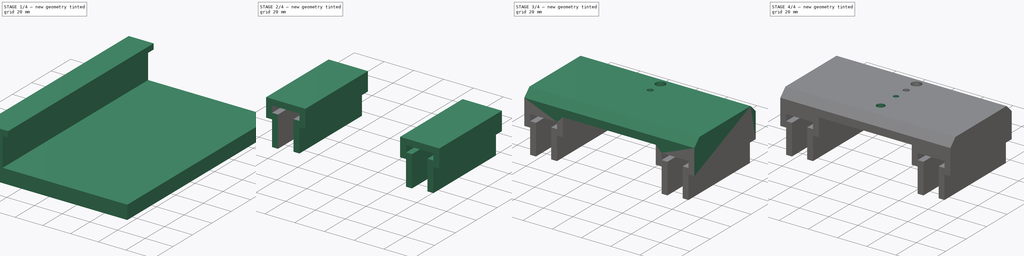
[diagram: build sequence overview — one tinted view per stage of 4, left to right]
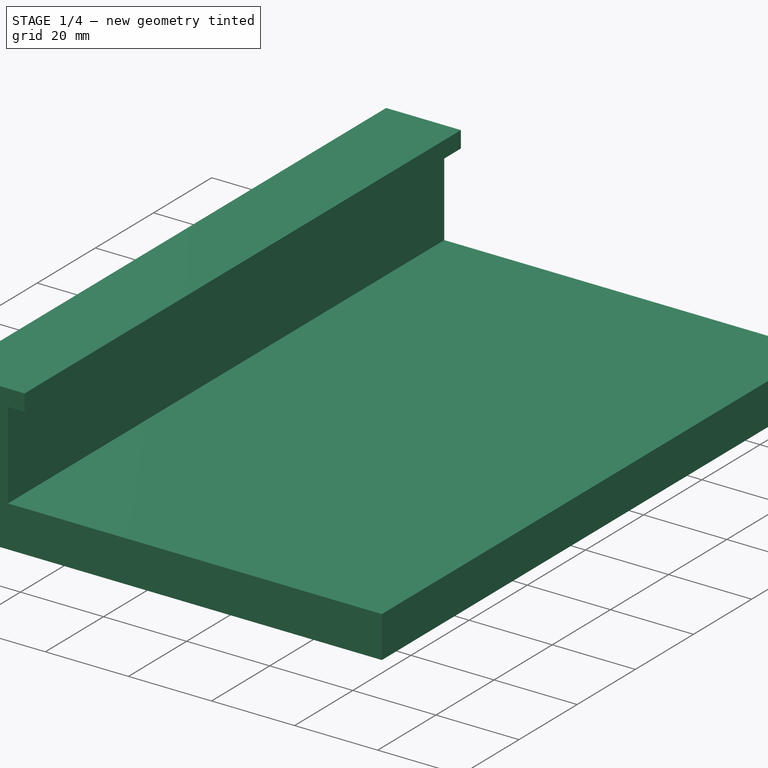
[diagram: stage 1 of 4 — iso view after this stage's code; geometry added in this stage tinted green]
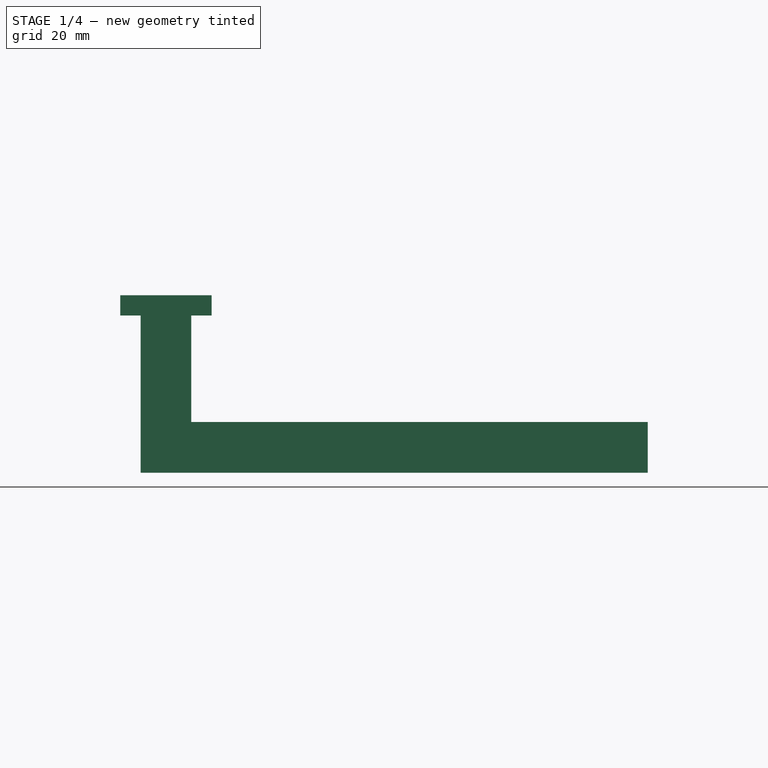
[diagram: stage 1 of 4 — front view after this stage's code; geometry added in this stage tinted green]
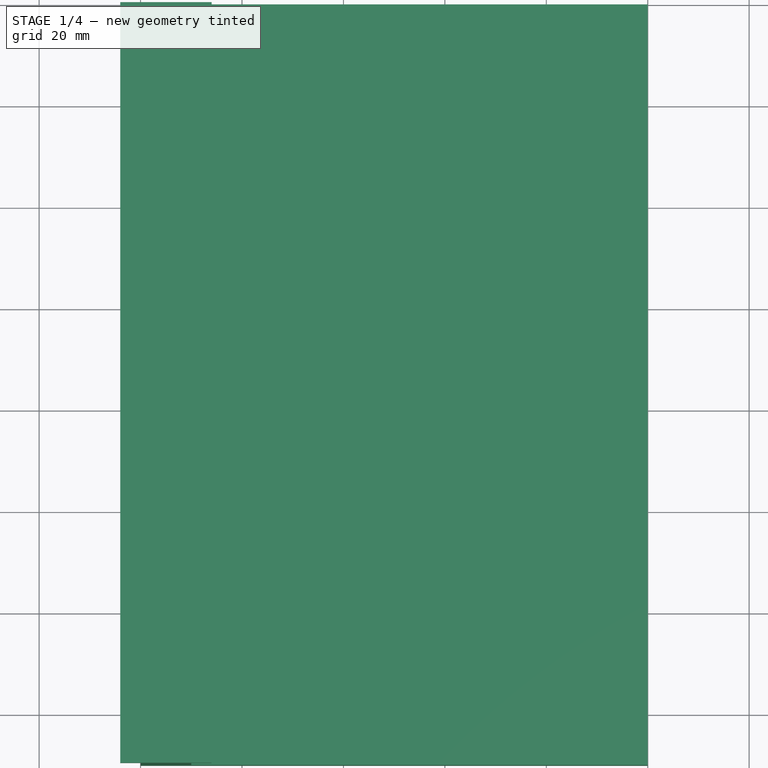
[diagram: stage 1 of 4 — top view after this stage's code; geometry added in this stage tinted green]
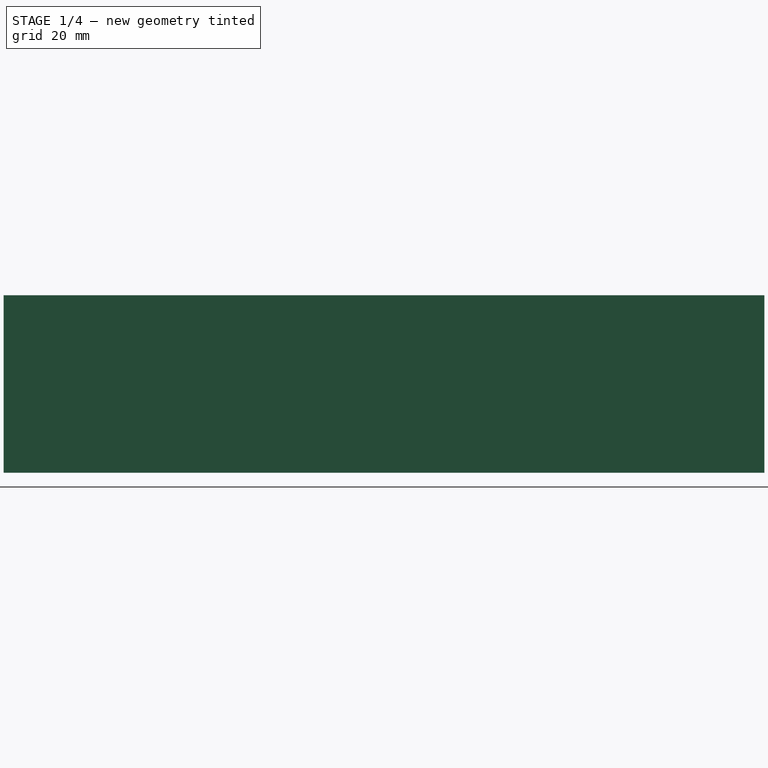
[diagram: stage 1 of 4 — right view after this stage's code; geometry added in this stage tinted green]
FCSTD DOCUMENT  (FreeCAD 1.0R39319 (Git))
Label: Pipe borer
License: All rights reserved
LicenseURL: https://en.wikipedia.org/wiki/All_rights_reserved
objects: Sketcher::SketchObject×5, PartDesign::Pad×4, PartDesign::Hole×4, App::VarSet×2, PartDesign::LinearPattern×2, PartDesign::Body×2, App::Part×2, PartDesign::ShapeBinder×2
note: 42 computed .brp shape members not serialized (recipe doc carries the construction recipe); baked Part::Feature solids carry a one-line shape summary decoded from their .brp

FEATURE [App::VarSet] VarSet
  Base_gap_for_sliding_parts = 0.2
  Y_rail_heigth = 10
  Y_rail_width = 60
  base_heigth = 10
  base_length = 150
  base_rail_heigth = 25
  base_rail_width = 10
  base_width = 100
  gap_for_sliding_coeff = 0.4
  trim_depth = 5
FEATURE [Sketcher::SketchObject] Sketch
  ArcFitTolerance = 1e-06
  AttachmentSupport = -> [XY_Plane001]
  FullyConstrained = false
  MakeInternals = false
  MapMode = 5
  expr: Constraints[8] = <<VarSet>>.base_length
  expr: Constraints[9] = VarSet.base_width
  sketch-geometry (4):
    g0: LineSegment StartX=0 StartY=0 StartZ=0 EndX=0 EndY=-150 EndZ=0
    g1: LineSegment StartX=0 StartY=-150 StartZ=0 EndX=100 EndY=-150 EndZ=0
    g2: LineSegment StartX=100 StartY=-150 StartZ=0 EndX=100 EndY=0 EndZ=0
    g3: LineSegment StartX=100 StartY=0 StartZ=0 EndX=0 EndY=0 EndZ=0
  constraints (10):
    c: Coincident(g0,g1)
    c: Coincident(g1,g2)
    c: Coincident(g2,g3)
    c: Coincident(g3,g0)
    c: Vertical(g0)
    c: Vertical(g2)
    c: Horizontal(g1)
    c: Horizontal(g3)
    c: DistanceY(g0,g0) = 150
    c: DistanceX(g3,g3) = 100
FEATURE [PartDesign::Pad] Pad
  Direction = (0,0,1)
  Length = 10
  Length2 = 10
  Profile = -> Sketch
  ReferenceAxis = -> Sketch [N_Axis]
  Refine = true
  Suppressed = false
  Type = 0
  expr: Length = VarSet.base_heigth
FEATURE [Sketcher::SketchObject] Sketch001
  ArcFitTolerance = 1e-06
  AttachmentSupport = -> [Pad]
  ExternalGeometry = -> [Pad]
  FullyConstrained = true
  MakeInternals = false
  MapMode = 5
  Placement = pos=(0,-150,0) rot=(1,0,0;1.5708rad)
  expr: Constraints[18] = VarSet.base_rail_heigth
  expr: Constraints[19] = VarSet.base_rail_width
  expr: Constraints[20] = VarSet.base_rail_width * VarSet.gap_for_sliding_coeff
  expr: Constraints[22] = VarSet.base_rail_width * VarSet.gap_for_sliding_coeff
  expr: Constraints[23] = VarSet.base_rail_width * VarSet.gap_for_sliding_coeff
  expr: Constraints[24] = VarSet.base_rail_width * VarSet.gap_for_sliding_coeff
  expr: Constraints[25] = VarSet.base_rail_width * VarSet.gap_for_sliding_coeff
  sketch-geometry (8):
    g0: LineSegment StartX=0 StartY=10 StartZ=0 EndX=0 EndY=31 EndZ=0
    g1: LineSegment StartX=0 StartY=31 StartZ=0 EndX=-4 EndY=31 EndZ=0
    g2: LineSegment StartX=-4 StartY=31 StartZ=0 EndX=-4 EndY=35 EndZ=0
    g3: LineSegment StartX=-4 StartY=35 StartZ=0 EndX=14 EndY=35 EndZ=0
    g4: LineSegment StartX=14 StartY=35 StartZ=0 EndX=14 EndY=31 EndZ=0
    g5: LineSegment StartX=14 StartY=31 StartZ=0 EndX=10 EndY=31 EndZ=0
    g6: LineSegment StartX=10 StartY=31 StartZ=0 EndX=10 EndY=10 EndZ=0
    g7: LineSegment StartX=10 StartY=10 StartZ=0 EndX=0 EndY=10 EndZ=0
  constraints (26):
    c: PointOnObject(g0,g-2)
    c: PointOnObject(g0,g-2)
    c: Vertical(g0)
    c: Coincident(g0,g1)
    c: Horizontal(g1)
    c: Coincident(g1,g2)
    c: Vertical(g2)
    c: Coincident(g2,g3)
    c: Horizontal(g3)
    c: Coincident(g3,g4)
    c: Vertical(g4)
    c: Coincident(g4,g5)
    c: Horizontal(g5)
    c: Coincident(g5,g6)
    c: Vertical(g6)
    c: Coincident(g6,g7)
    c: Coincident(g7,g0)
    c: Horizontal(g7)
    c: DistanceY(g0,g2) = 25
    c: DistanceX(g0,g6) = 10
    c: DistanceX(g2,g1) = 4
    c: Coincident(g0,g-3)
    c: DistanceX(g5,g4) = 4
    c: DistanceX(g1,g0) = 4
    c: DistanceY(g1,g2) = 4
    c: DistanceY(g4,g3) = 4
FEATURE [PartDesign::Pad] Pad001
  BaseFeature = -> Pad
  Direction = (0,-1,2e-16)
  Length = 150
  Length2 = 10
  Profile = -> Sketch001
  ReferenceAxis = -> Sketch001 [N_Axis]
  Refine = true
  Reversed = true
  Suppressed = false
  Type = 3
  UpToFace = -> Pad [Face4]
  expr: Length = <<VarSet>>.base_length
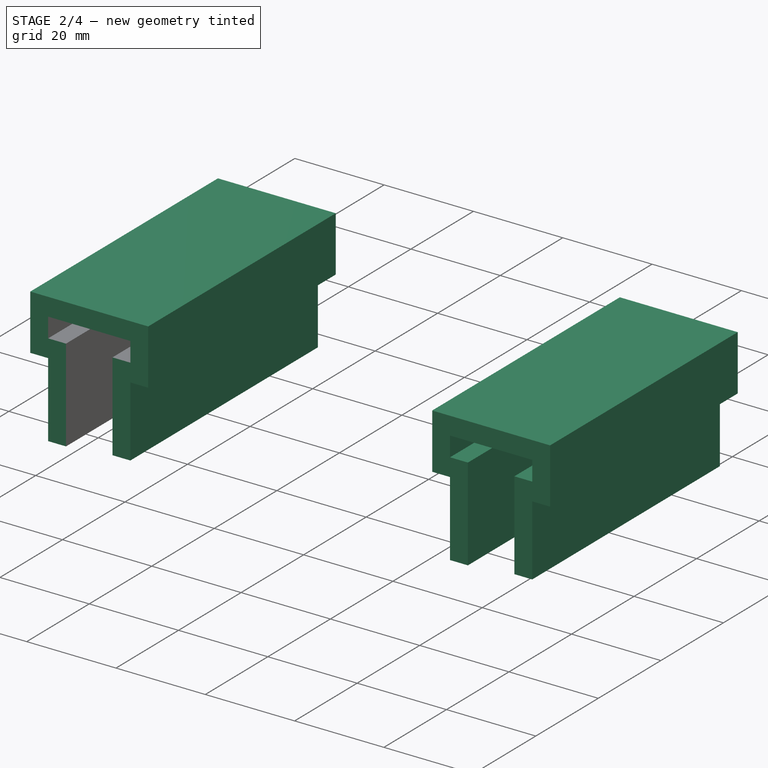
[diagram: stage 2 of 4 — iso view after this stage's code; geometry added in this stage tinted green]
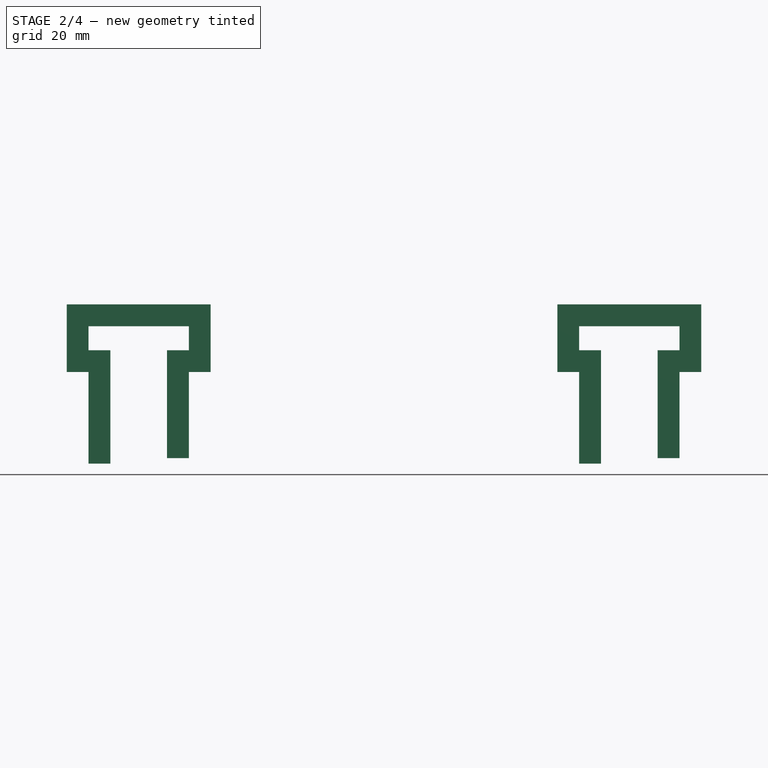
[diagram: stage 2 of 4 — front view after this stage's code; geometry added in this stage tinted green]
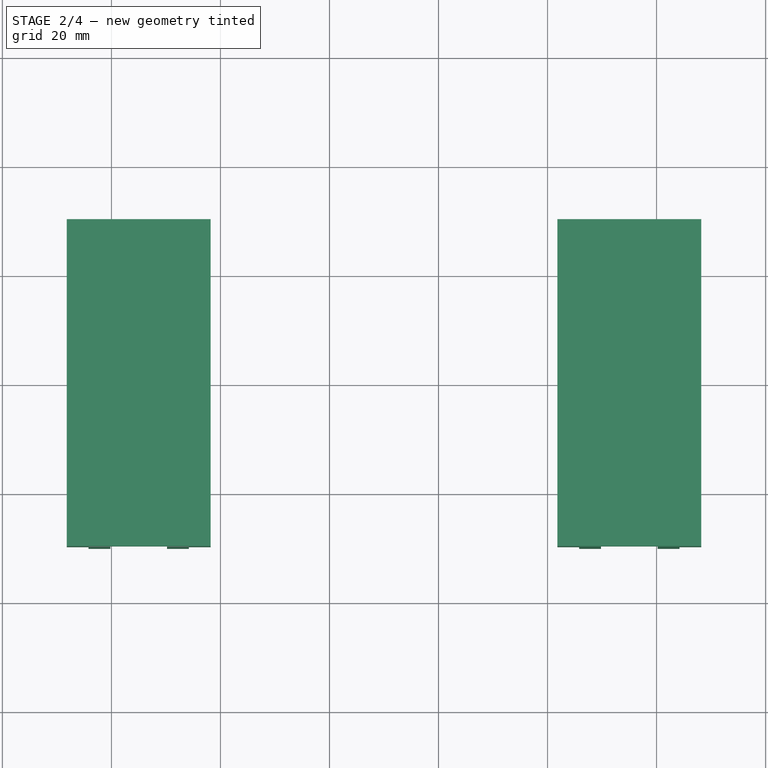
[diagram: stage 2 of 4 — top view after this stage's code; geometry added in this stage tinted green]
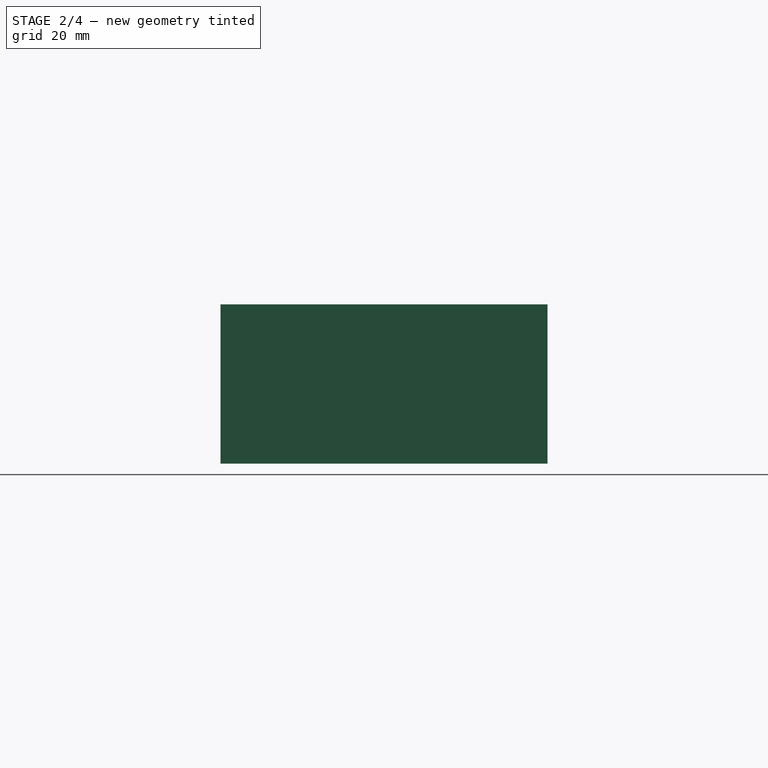
[diagram: stage 2 of 4 — right view after this stage's code; geometry added in this stage tinted green]
FEATURE [PartDesign::LinearPattern] LinearPattern
  BaseFeature = -> Pad001
  Direction = -> Sketch001 [H_Axis]
  Length = 90
  Mode = 0
  Occurrences = 2
  Offset = 90
  Originals = -> [Pad001]
  Refine = true
  Suppressed = false
  TransformMode = 0
  expr: Length = <<VarSet>>.base_width - <<VarSet>>.base_rail_width
FEATURE [PartDesign::Body] Body  label="main"
  AllowCompound = false
  Group = -> [Sketch,Pad,Sketch001,Pad001,LinearPattern]
  Origin = -> Origin001
  Tip = -> LinearPattern
FEATURE [App::Part] Part  label="Base"
  Group = -> [Body]
  Origin = -> Origin
FEATURE [PartDesign::ShapeBinder] ShapeBinder
  Support = -> [LinearPattern]
  TraceSupport = true
FEATURE [Sketcher::SketchObject] Sketch002
  ArcFitTolerance = 1e-06
  AttachmentSupport = -> [ShapeBinder]
  ExternalGeometry = -> [ShapeBinder]
  FullyConstrained = false
  MakeInternals = false
  MapMode = 5
  Placement = pos=(0,-150,0) rot=(1,0,0;1.5708rad)
  expr: Constraints[32] = <<VarSet>>.Base_gap_for_sliding_parts
  expr: Constraints[33] = <<VarSet>>.Base_gap_for_sliding_parts
  expr: Constraints[34] = <<VarSet>>.Base_gap_for_sliding_parts
  expr: Constraints[35] = VarSet.Base_gap_for_sliding_parts
  expr: Constraints[36] = VarSet.Base_gap_for_sliding_parts
  expr: Constraints[37] = VarSet.Base_gap_for_sliding_parts
  expr: Constraints[38] = VarSet.Base_gap_for_sliding_parts
  expr: Constraints[39] = VarSet.base_rail_width * VarSet.gap_for_sliding_coeff
  expr: Constraints[40] = VarSet.base_rail_width * VarSet.gap_for_sliding_coeff
  expr: Constraints[41] = VarSet.base_rail_width * VarSet.gap_for_sliding_coeff
  expr: Constraints[42] = VarSet.base_rail_width * VarSet.gap_for_sliding_coeff
  expr: Constraints[43] = VarSet.base_rail_width * VarSet.gap_for_sliding_coeff
  expr: Constraints[44] = VarSet.base_rail_width * VarSet.gap_for_sliding_coeff
  expr: Constraints[45] = VarSet.base_rail_width * VarSet.gap_for_sliding_coeff
  sketch-geometry (16):
    g0: LineSegment StartX=-0.2 StartY=10 StartZ=0 EndX=-0.2 EndY=30.8 EndZ=0
    g1: LineSegment StartX=-0.2 StartY=30.8 StartZ=0 EndX=-4.2 EndY=30.8 EndZ=0
    g2: LineSegment StartX=-4.2 StartY=30.8 StartZ=0 EndX=-4.2 EndY=35.2 EndZ=0
    g3: LineSegment StartX=-4.2 StartY=35.2 StartZ=0 EndX=14.2 EndY=35.2 EndZ=0
    g4: LineSegment StartX=14.2 StartY=35.2 StartZ=0 EndX=14.2 EndY=30.8 EndZ=0
    g5: LineSegment StartX=14.2 StartY=30.8 StartZ=0 EndX=10.2 EndY=30.8 EndZ=0
    g6: LineSegment StartX=10.2 StartY=30.8 StartZ=0 EndX=10.2 EndY=11 EndZ=0
    g7: LineSegment StartX=10.2 StartY=11 StartZ=0 EndX=14.2 EndY=11 EndZ=0
    g8: LineSegment StartX=14.2 StartY=11 StartZ=0 EndX=14.2 EndY=26.8 EndZ=0
    g9: LineSegment StartX=14.2 StartY=26.8 StartZ=0 EndX=18.2 EndY=26.8 EndZ=0
    g10: LineSegment StartX=18.2 StartY=26.8 StartZ=0 EndX=18.2 EndY=39.2 EndZ=0
    g11: LineSegment StartX=18.2 StartY=39.2 StartZ=0 EndX=-8.2 EndY=39.2 EndZ=0
    g12: LineSegment StartX=-8.2 StartY=39.2 StartZ=0 EndX=-8.2 EndY=26.8 EndZ=0
    g13: LineSegment StartX=-8.2 StartY=26.8 StartZ=0 EndX=-4.2 EndY=26.8 EndZ=0
    g14: LineSegment StartX=-4.2 StartY=26.8 StartZ=0 EndX=-4.2 EndY=10 EndZ=0
    g15: LineSegment StartX=-4.2 StartY=10 StartZ=0 EndX=-0.2 EndY=10 EndZ=0
  constraints (46):
    c: Vertical(g0)
    c: Coincident(g0,g1)
    c: Horizontal(g1)
    c: Coincident(g1,g2)
    c: Vertical(g2)
    c: Coincident(g2,g3)
    c: Horizontal(g3)
    c: Coincident(g3,g4)
    c: Vertical(g4)
    c: Coincident(g4,g5)
    c: Horizontal(g5)
    c: Coincident(g5,g6)
    c: Vertical(g6)
    c: Coincident(g6,g7)
    c: Horizontal(g7)
    c: Coincident(g7,g8)
    c: Vertical(g8)
    c: Coincident(g8,g9)
    c: Horizontal(g9)
    c: Coincident(g9,g10)
    c: Vertical(g10)
    c: Coincident(g10,g11)
    c: Horizontal(g11)
    c: Coincident(g11,g12)
    c: Vertical(g12)
    c: Coincident(g12,g13)
    c: Horizontal(g13)
    c: Coincident(g13,g14)
    c: Vertical(g14)
    c: Coincident(g14,g15)
    c: Coincident(g15,g0)
    c: Horizontal(g15)
    c: DistanceX(g2,g-5) = 0.2
    c: DistanceX(g-10,g3) = 0.2
    c: DistanceX(g-9,g5) = 0.2
    c: DistanceY(g4,g-10) = 0.2
    c: DistanceY(g0,g-7) = 0.2
    c: DistanceX(g0,g-7) = 0.2
    c: DistanceY(g-5,g2) = 0.2
    c: DistanceX(g14,g0) = 4
    c: DistanceY(g13,g1) = 4
    c: DistanceX(g6,g7) = 4
    c: DistanceY(g8,g4) = 4
    c: DistanceY(g3,g10) = 4
    c: DistanceX(g4,g9) = 4
    c: DistanceX(g12,g1) = 4
FEATURE [PartDesign::Pad] Pad002
  Direction = (0,-1,2e-16)
  Length = 60
  Length2 = 10
  Profile = -> Sketch002
  ReferenceAxis = -> Sketch002 [N_Axis]
  Refine = true
  Reversed = true
  Suppressed = false
  Type = 0
  expr: Length = VarSet.Y_rail_width
FEATURE [PartDesign::LinearPattern] LinearPattern001
  BaseFeature = -> Pad002
  Direction = -> Sketch002 [H_Axis]
  Length = 90
  Mode = 0
  Occurrences = 2
  Offset = 90
  Originals = -> [Pad002]
  Refine = true
  Suppressed = false
  TransformMode = 1
  expr: Length = <<VarSet>>.base_width - <<VarSet>>.base_rail_width
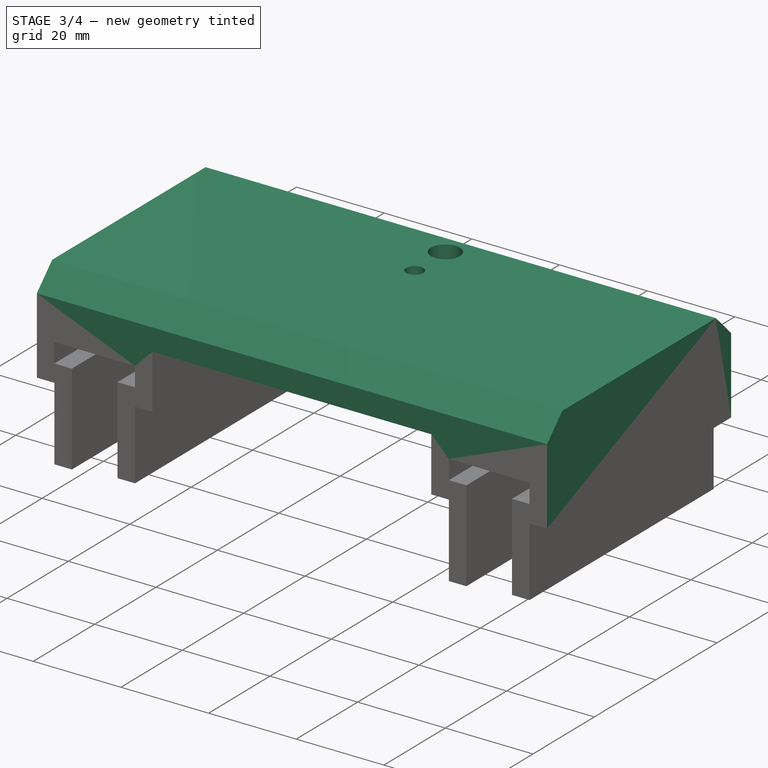
[diagram: stage 3 of 4 — iso view after this stage's code; geometry added in this stage tinted green]
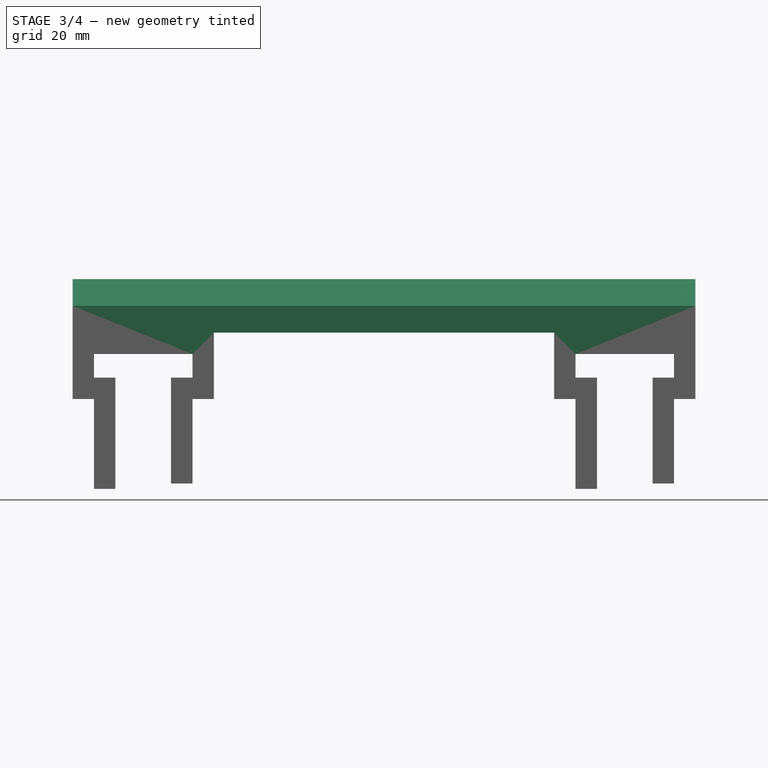
[diagram: stage 3 of 4 — front view after this stage's code; geometry added in this stage tinted green]
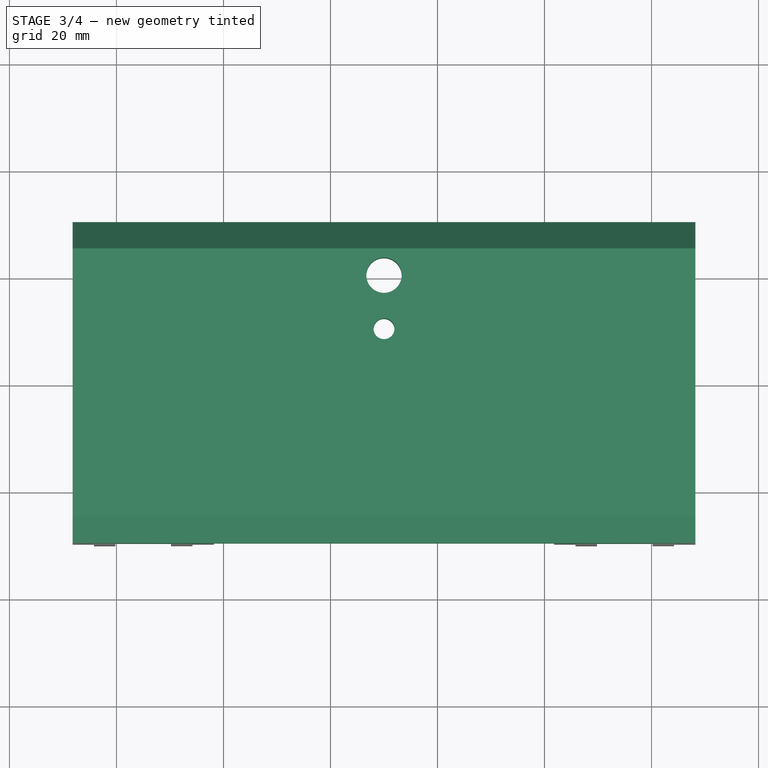
[diagram: stage 3 of 4 — top view after this stage's code; geometry added in this stage tinted green]
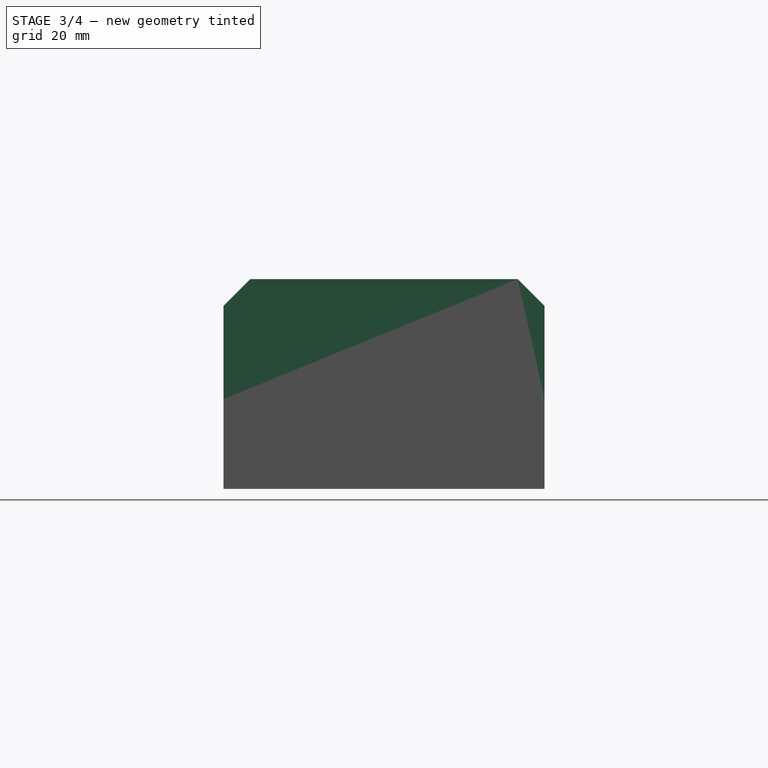
[diagram: stage 3 of 4 — right view after this stage's code; geometry added in this stage tinted green]
FEATURE [Sketcher::SketchObject] Sketch003
  ArcFitTolerance = 1e-06
  AttachmentSupport = -> [LinearPattern001]
  ExternalGeometry = -> [LinearPattern001]
  FullyConstrained = true
  MakeInternals = false
  MapMode = 5
  Placement = pos=(-8.2,0,0) rot=(0.57735,-0.57735,-0.57735;2.0944rad)
  expr: Constraints[11] = VarSet.Y_rail_heigth
  expr: Constraints[12] = VarSet.trim_depth
  expr: Constraints[13] = VarSet.trim_depth
  expr: Constraints[14] = VarSet.trim_depth
  expr: Constraints[15] = VarSet.trim_depth
  sketch-geometry (6):
    g0: LineSegment StartX=90 StartY=39.2 StartZ=0 EndX=90 EndY=44.2 EndZ=0
    g1: LineSegment StartX=90 StartY=44.2 StartZ=0 EndX=95 EndY=49.2 EndZ=0
    g2: LineSegment StartX=95 StartY=49.2 StartZ=0 EndX=145 EndY=49.2 EndZ=0
    g3: LineSegment StartX=145 StartY=49.2 StartZ=0 EndX=150 EndY=44.2 EndZ=0
    g4: LineSegment StartX=150 StartY=44.2 StartZ=0 EndX=150 EndY=39.2 EndZ=0
    g5: LineSegment StartX=150 StartY=39.2 StartZ=0 EndX=90 EndY=39.2 EndZ=0
  constraints (16):
    c: Coincident(g-3,g0)
    c: Vertical(g0)
    c: Coincident(g0,g1)
    c: Coincident(g1,g2)
    c: Horizontal(g2)
    c: Coincident(g2,g3)
    c: Coincident(g3,g4)
    c: Coincident(g4,g-3)
    c: Vertical(g4)
    c: Coincident(g4,g5)
    c: Coincident(g5,g0)
    c: DistanceY(g0,g1) = 10
    c: DistanceX(g0,g1) = 5
    c: DistanceX(g2,g3) = 5
    c: DistanceY(g0,g1) = 5
    c: DistanceY(g3,g2) = 5
FEATURE [PartDesign::Pad] Pad003
  BaseFeature = -> LinearPattern001
  Direction = (-1,0,0)
  Length = 10
  Length2 = 10
  Profile = -> Sketch003
  ReferenceAxis = -> Sketch003 [N_Axis]
  Refine = true
  Suppressed = false
  Type = 3
  UpToFace = -> LinearPattern001 [Face29]
FEATURE [Sketcher::SketchObject] Sketch004
  ArcFitTolerance = 1e-06
  AttachmentSupport = -> [Pad003]
  ExternalGeometry = -> [Pad003]
  FullyConstrained = false
  MakeInternals = false
  MapMode = 5
  Placement = pos=(0,0,49.2) rot=(0,0,1;0rad)
  sketch-geometry (4):
    g0: Circle CenterX=50 CenterY=-135 CenterZ=0 NormalX=0 NormalY=0 NormalZ=1 AngleXU=0 Radius=5
    g1: Circle CenterX=50 CenterY=-120 CenterZ=0 NormalX=0 NormalY=0 NormalZ=1 AngleXU=0 Radius=3.77148
    g2: Circle CenterX=50 CenterY=-110 CenterZ=0 NormalX=0 NormalY=0 NormalZ=1 AngleXU=0 Radius=3.02226
    g3: Circle CenterX=50 CenterY=-100 CenterZ=0 NormalX=0 NormalY=0 NormalZ=1 AngleXU=0 Radius=3.82571
  constraints (2):
    c: DistanceY(g-6,g0) = 10
    c: Diameter(g0) = 10
FEATURE [PartDesign::ShapeBinder] ShapeBinder001
  Support = -> [Pad003]
  TraceSupport = false
FEATURE [App::VarSet] VarSet001
  drill1_d = 1
  drill2_d = 2
  drill3_d = 3
  drill4_d = 4
  drill5_d = 5
  drill6_d = 6
  drill7_d = 7
  drill8_d = 8
  outer_drill1_d = 5
  outer_drill2_d = 6
  outer_drill3_d = 6
  outer_drill4_d = 8
  outer_drill5_d = 10
  outer_drill6_d = 12
  outer_drill7_d = 16
  outer_drill8_d = 16
FEATURE [PartDesign::Hole] Hole
  BaseFeature = -> Pad003
  CustomThreadClearance = 0
  Depth = 25
  DepthType = 0
  Diameter = 6.6
  DrillForDepth = false
  DrillPoint = 1
  DrillPointAngle = 118
  HoleCutCountersinkAngle = 90
  HoleCutCustomValues = false
  HoleCutDepth = 0
  HoleCutDiameter = 6.1
  HoleCutType = 0
  ModelThread = false
  Profile = -> Sketch004 [Edge4]
  Refine = true
  Suppressed = false
  Tapered = false
  TaperedAngle = 90
  ThreadClass = 0
  ThreadDepth = 25
  ThreadDepthType = 0
  ThreadDirection = 0
  ThreadFit = 0
  ThreadSize = 14
  ThreadType = 1
  Threaded = false
  UseCustomThreadClearance = false
FEATURE [PartDesign::Hole] Hole001
  BaseFeature = -> Hole
  CustomThreadClearance = 0
  Depth = 25
  DepthType = 0
  Diameter = 3.9
  DrillForDepth = false
  DrillPoint = 1
  DrillPointAngle = 118
  HoleCutCountersinkAngle = 90
  HoleCutCustomValues = false
  HoleCutDepth = 0
  HoleCutDiameter = 6.1
  HoleCutType = 0
  ModelThread = false
  Profile = -> Sketch004 [Edge3]
  Refine = true
  Suppressed = false
  Tapered = false
  TaperedAngle = 90
  ThreadClass = 0
  ThreadDepth = 25
  ThreadDepthType = 0
  ThreadDirection = 0
  ThreadFit = 0
  ThreadSize = 10
  ThreadType = 1
  Threaded = false
  UseCustomThreadClearance = false
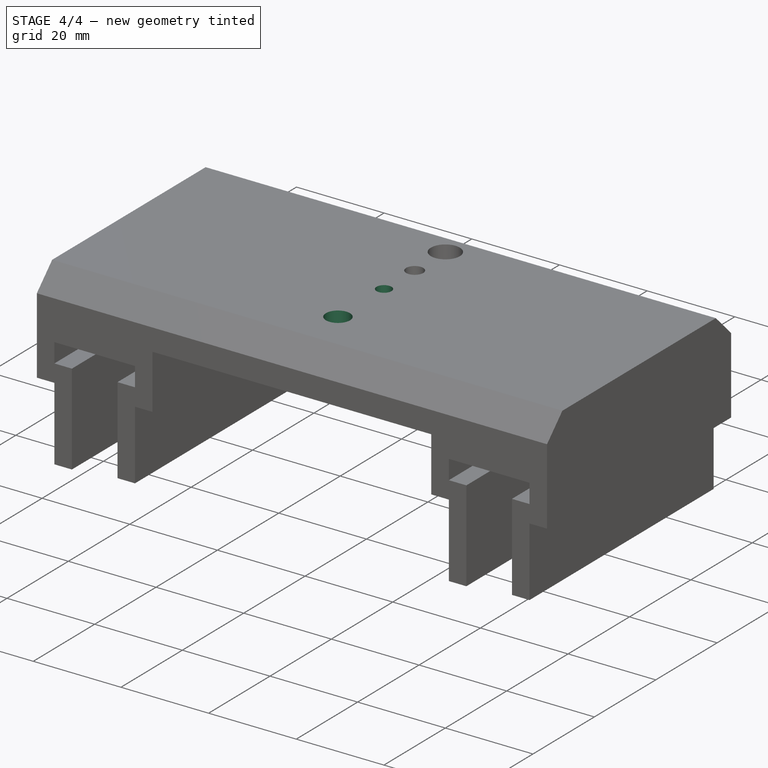
[diagram: stage 4 of 4 — iso view after this stage's code; geometry added in this stage tinted green]
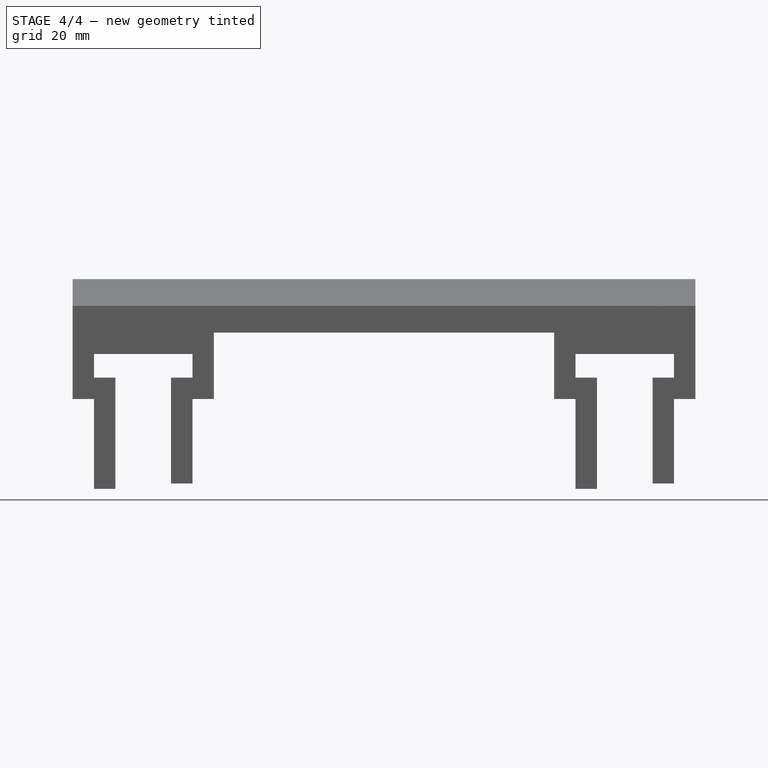
[diagram: stage 4 of 4 — front view after this stage's code; geometry added in this stage tinted green]
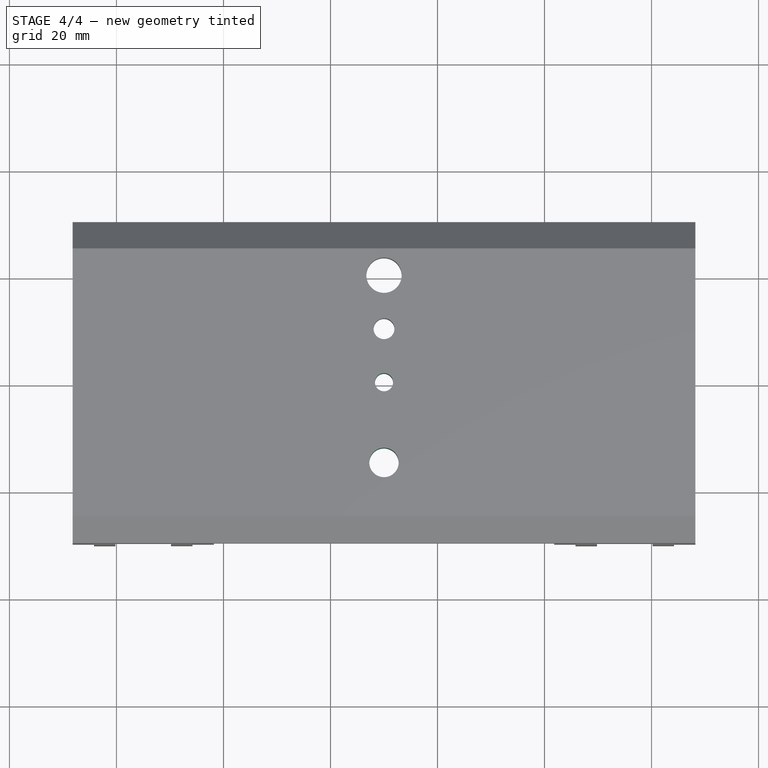
[diagram: stage 4 of 4 — top view after this stage's code; geometry added in this stage tinted green]
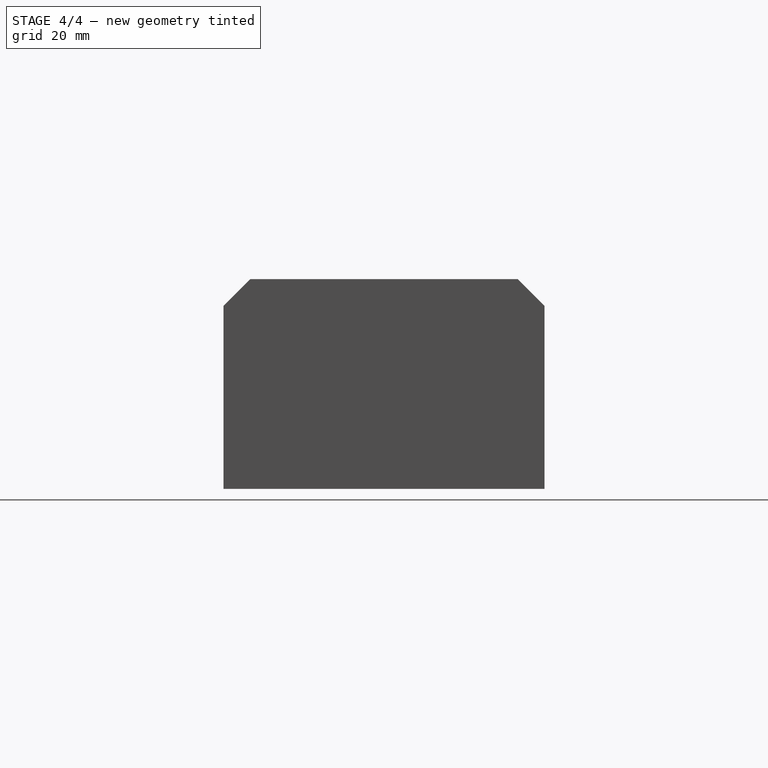
[diagram: stage 4 of 4 — right view after this stage's code; geometry added in this stage tinted green]
FEATURE [PartDesign::Hole] Hole002
  BaseFeature = -> Hole001
  CustomThreadClearance = 0
  Depth = 25
  DepthType = 0
  Diameter = 3.4
  DrillForDepth = false
  DrillPoint = 1
  DrillPointAngle = 118
  HoleCutCountersinkAngle = 90
  HoleCutCustomValues = false
  HoleCutDepth = 0
  HoleCutDiameter = 6.1
  HoleCutType = 0
  ModelThread = false
  Profile = -> Sketch004 [Edge2]
  Refine = true
  Suppressed = false
  Tapered = false
  TaperedAngle = 90
  ThreadClass = 0
  ThreadDepth = 25
  ThreadDepthType = 0
  ThreadDirection = 0
  ThreadFit = 0
  ThreadSize = 9
  ThreadType = 1
  Threaded = false
  UseCustomThreadClearance = false
FEATURE [PartDesign::Hole] Hole003
  BaseFeature = -> Hole002
  CustomThreadClearance = 0
  Depth = 25
  DepthType = 0
  Diameter = 5.5
  DrillForDepth = false
  DrillPoint = 1
  DrillPointAngle = 118
  HoleCutCountersinkAngle = 90
  HoleCutCustomValues = false
  HoleCutDepth = 0
  HoleCutDiameter = 6.1
  HoleCutType = 0
  ModelThread = false
  Profile = -> Sketch004 [Edge1]
  Refine = true
  Suppressed = false
  Tapered = false
  TaperedAngle = 90
  ThreadClass = 0
  ThreadDepth = 25
  ThreadDepthType = 0
  ThreadDirection = 0
  ThreadFit = 0
  ThreadSize = 13
  ThreadType = 1
  Threaded = false
  UseCustomThreadClearance = false
FEATURE [PartDesign::Body] Body001  label="Y_rail"
  AllowCompound = true
  Group = -> [ShapeBinder,Sketch002,Pad002,LinearPattern001,Sketch003,Pad003,Sketch004,ShapeBinder001,VarSet001,Hole,Hole001,Hole002,Hole003]
  Origin = -> Origin002
  Tip = -> Hole003
FEATURE [App::Part] Part001  label="Rail"
  Group = -> [Body001]
  Origin = -> Origin005
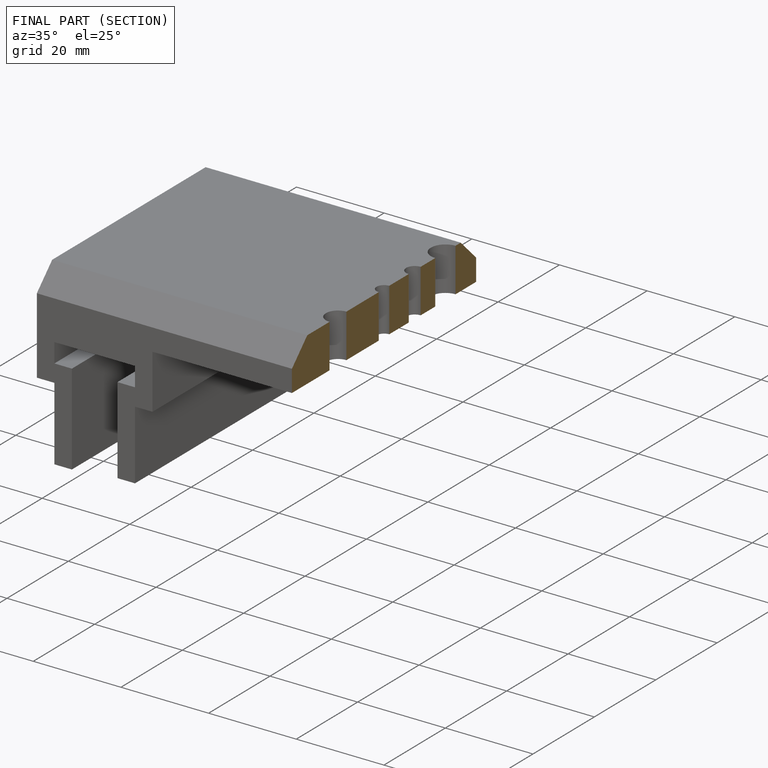
[diagram: finished part — half-section view (interior)]
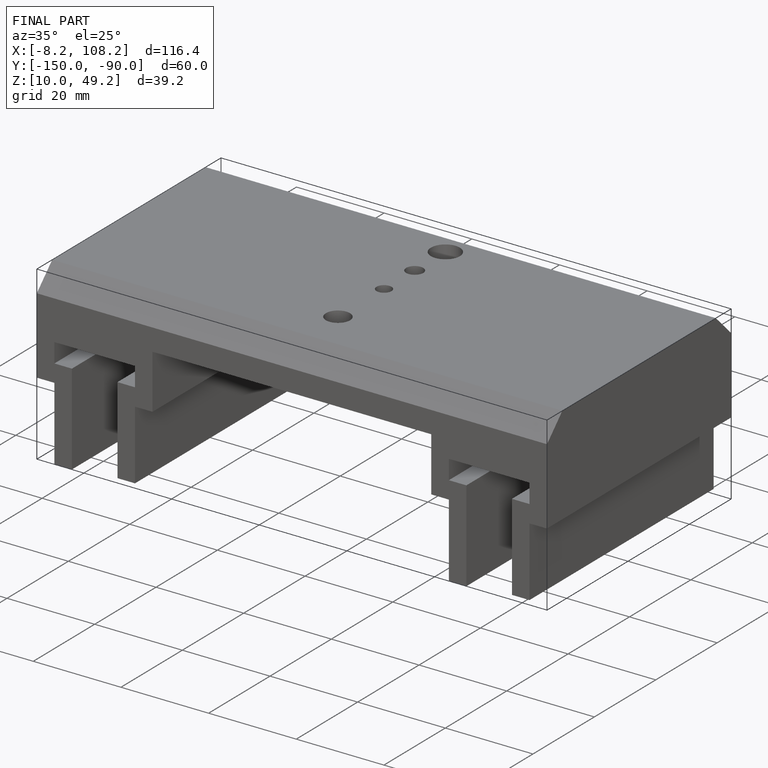
[diagram: finished part — iso view with bounding-box wireframe]
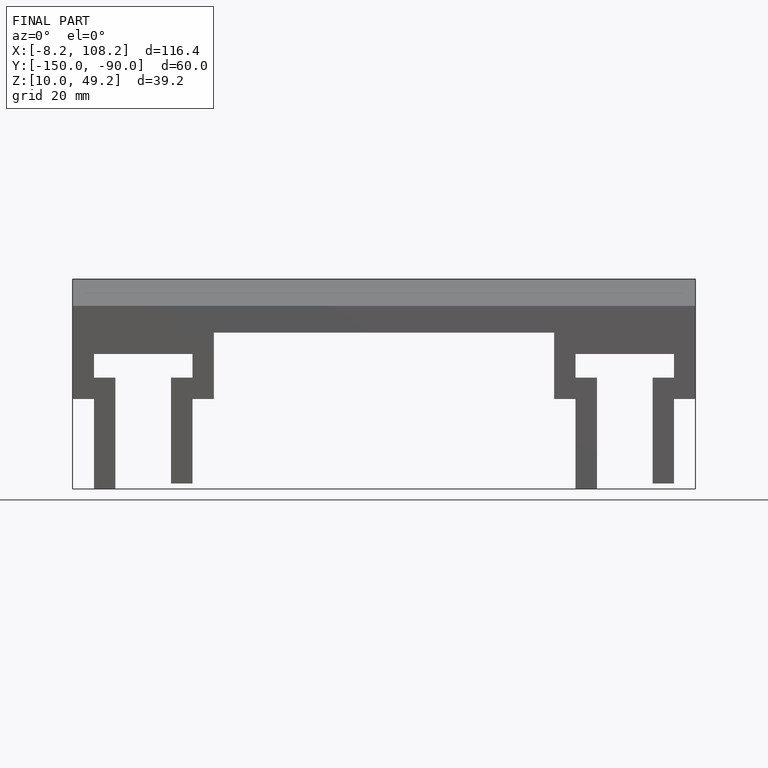
[diagram: finished part — front view with bounding-box wireframe]
